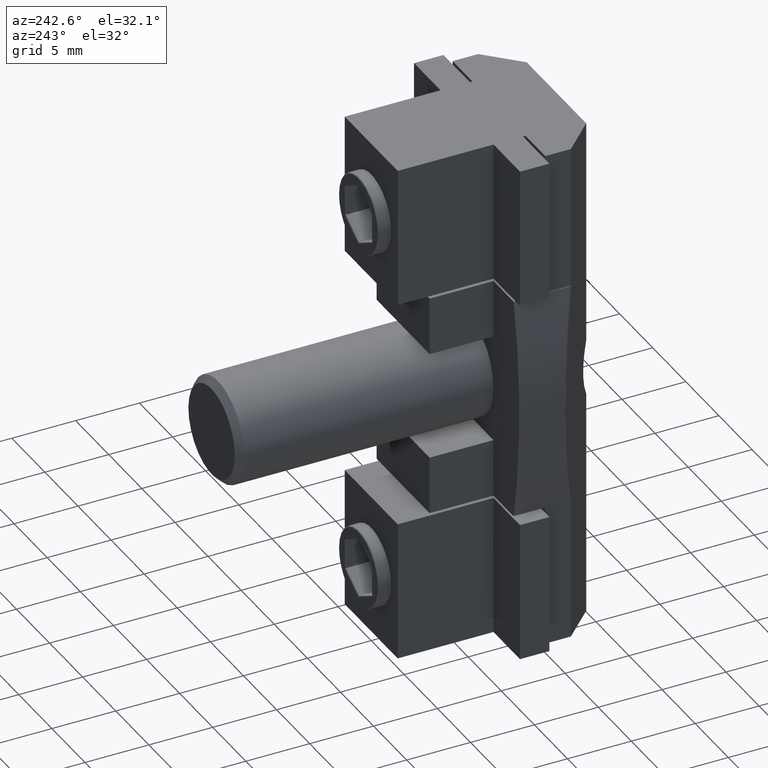
[diagram: clean part render]
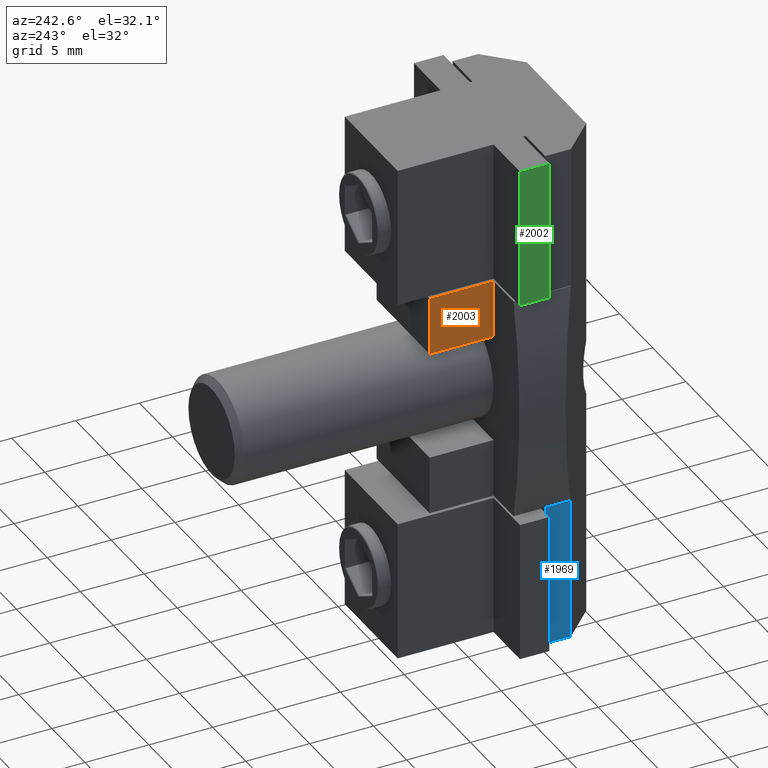
[diagram: same view with three faces highlighted in distinct colors, each labeled with its STEP entity id]
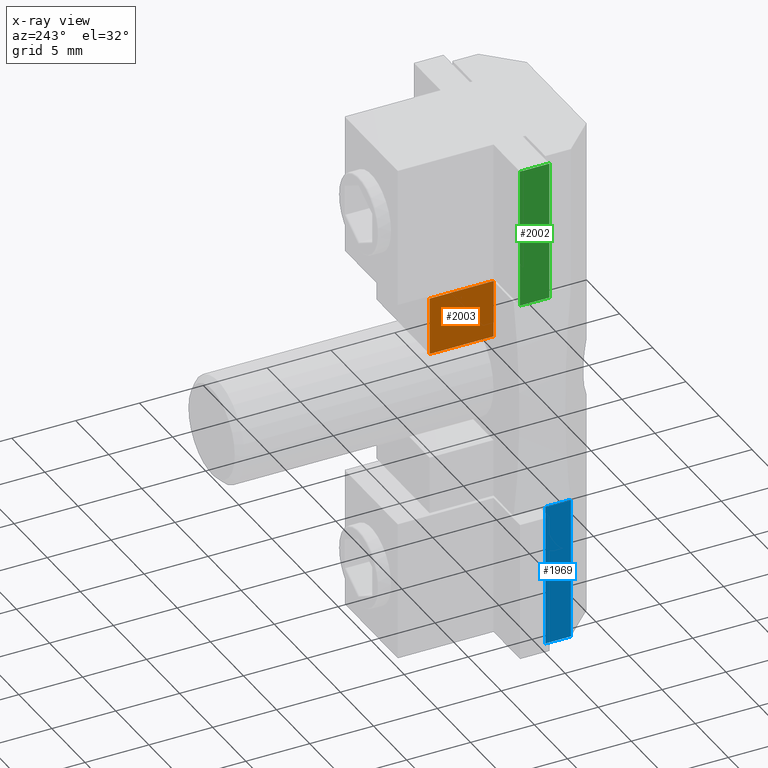
[diagram: x-ray of the same camera — body ghosted, the three highlighted faces saturated]
A machine part, auxiliary view with three faces highlighted in distinct colors.
The next image is the same camera in x-ray (body ghosted, the three faces saturated) — at least one of them is partly hidden behind the body in this view.
Their STEP definitions:

[orange] entity #2003 — the highlighted planar face has unit normal (-1, 0, 0).
#138=PLANE('',#2189);
#249=FACE_OUTER_BOUND('',#368,.T.);
#368=EDGE_LOOP('',(#1799,#1800,#1801,#1802));
#475=LINE('',#3042,#694);
#556=LINE('',#3278,#775);
#559=LINE('',#3284,#778);
#593=LINE('',#3351,#812);
#694=VECTOR('',#2429,10.);
#775=VECTOR('',#2620,10.);
#778=VECTOR('',#2625,10.);
#812=VECTOR('',#2683,10.);
#924=VERTEX_POINT('',#3039);
#925=VERTEX_POINT('',#3041);
#991=VERTEX_POINT('',#3276);
#993=VERTEX_POINT('',#3282);
#1141=EDGE_CURVE('',#925,#924,#475,.T.);
#1242=EDGE_CURVE('',#924,#991,#556,.T.);
#1245=EDGE_CURVE('',#991,#993,#559,.T.);
#1279=EDGE_CURVE('',#993,#925,#593,.T.);
#1799=ORIENTED_EDGE('',*,*,#1141,.T.);
#1800=ORIENTED_EDGE('',*,*,#1242,.T.);
#1801=ORIENTED_EDGE('',*,*,#1245,.T.);
#1802=ORIENTED_EDGE('',*,*,#1279,.T.);
#2003=ADVANCED_FACE('',(#249),#138,.T.);
#2189=AXIS2_PLACEMENT_3D('',#3387,#2722,#2723);
#2429=DIRECTION('',(0.,1.,-2.96059473233375E-16));
#2620=DIRECTION('',(0.,0.,-1.));
#2625=DIRECTION('',(0.,-1.,0.));
#2683=DIRECTION('',(0.,0.,1.));
#2722=DIRECTION('center_axis',(-1.,0.,0.));
#2723=DIRECTION('ref_axis',(0.,-1.,0.));
#3039=CARTESIAN_POINT('',(-4.,7.5,8.8));
#3041=CARTESIAN_POINT('',(-4.,2.5,8.8));
#3042=CARTESIAN_POINT('',(-4.,5.,8.8));
#3276=CARTESIAN_POINT('',(-4.,7.5,4.25));
#3278=CARTESIAN_POINT('',(-4.,7.5,4.4));
#3282=CARTESIAN_POINT('',(-4.,2.5,4.25));
#3284=CARTESIAN_POINT('',(-4.,8.75,4.25));
#3351=CARTESIAN_POINT('',(-4.,2.5,0.));
#3387=CARTESIAN_POINT('Origin',(-4.,10.,0.));

[blue] entity #1969 — the highlighted planar face has unit normal (-1, 0, 0).
#106=PLANE('',#2152);
#215=FACE_OUTER_BOUND('',#333,.T.);
#333=EDGE_LOOP('',(#1627,#1628,#1629,#1630));
#515=LINE('',#3188,#734);
#518=LINE('',#3197,#737);
#519=LINE('',#3199,#738);
#520=LINE('',#3200,#739);
#734=VECTOR('',#2545,10.);
#737=VECTOR('',#2556,10.);
#738=VECTOR('',#2557,10.);
#739=VECTOR('',#2558,10.);
#927=VERTEX_POINT('',#3048);
#959=VERTEX_POINT('',#3187);
#961=VERTEX_POINT('',#3196);
#962=VERTEX_POINT('',#3198);
#1197=EDGE_CURVE('',#959,#927,#515,.T.);
#1201=EDGE_CURVE('',#927,#961,#518,.T.);
#1202=EDGE_CURVE('',#962,#961,#519,.T.);
#1203=EDGE_CURVE('',#959,#962,#520,.T.);
#1627=ORIENTED_EDGE('',*,*,#1201,.T.);
#1628=ORIENTED_EDGE('',*,*,#1202,.F.);
#1629=ORIENTED_EDGE('',*,*,#1203,.F.);
#1630=ORIENTED_EDGE('',*,*,#1197,.T.);
#1969=ADVANCED_FACE('',(#215),#106,.T.);
#2152=AXIS2_PLACEMENT_3D('',#3195,#2554,#2555);
#2545=DIRECTION('',(0.,0.,1.));
#2554=DIRECTION('center_axis',(-1.,0.,0.));
#2555=DIRECTION('ref_axis',(0.,-1.,0.));
#2556=DIRECTION('',(0.,1.,0.));
#2557=DIRECTION('',(0.,0.,1.));
#2558=DIRECTION('',(0.,1.,0.));
#3048=CARTESIAN_POINT('',(-7.,-2.,-8.8));
#3187=CARTESIAN_POINT('',(-7.,-2.,-20.));
#3188=CARTESIAN_POINT('',(-7.,-2.,0.));
#3195=CARTESIAN_POINT('Origin',(-7.,0.,0.));
#3196=CARTESIAN_POINT('',(-7.,0.,-8.8));
#3197=CARTESIAN_POINT('',(-7.,0.0999999999999995,-8.8));
#3198=CARTESIAN_POINT('',(-7.,0.,-20.));
#3199=CARTESIAN_POINT('',(-7.,0.,0.));
#3200=CARTESIAN_POINT('',(-7.,0.,-20.));

[green] entity #2002 — the highlighted planar face has unit normal (-1, 0, 0).
#137=PLANE('',#2188);
#248=FACE_OUTER_BOUND('',#367,.T.);
#367=EDGE_LOOP('',(#1795,#1796,#1797,#1798));
#553=LINE('',#3272,#772);
#607=LINE('',#3378,#826);
#610=LINE('',#3385,#829);
#611=LINE('',#3386,#830);
#772=VECTOR('',#2615,10.);
#826=VECTOR('',#2713,10.);
#829=VECTOR('',#2720,10.);
#830=VECTOR('',#2721,10.);
#981=VERTEX_POINT('',#3253);
#989=VERTEX_POINT('',#3270);
#1019=VERTEX_POINT('',#3376);
#1021=VERTEX_POINT('',#3384);
#1239=EDGE_CURVE('',#981,#989,#553,.T.);
#1293=EDGE_CURVE('',#1019,#989,#607,.T.);
#1296=EDGE_CURVE('',#1021,#1019,#610,.T.);
#1297=EDGE_CURVE('',#981,#1021,#611,.T.);
#1795=ORIENTED_EDGE('',*,*,#1239,.T.);
#1796=ORIENTED_EDGE('',*,*,#1293,.F.);
#1797=ORIENTED_EDGE('',*,*,#1296,.F.);
#1798=ORIENTED_EDGE('',*,*,#1297,.F.);
#2002=ADVANCED_FACE('',(#248),#137,.T.);
#2188=AXIS2_PLACEMENT_3D('',#3383,#2718,#2719);
#2615=DIRECTION('',(0.,-1.,0.));
#2713=DIRECTION('',(0.,0.,-1.));
#2718=DIRECTION('center_axis',(-1.,0.,0.));
#2719=DIRECTION('ref_axis',(0.,-1.,0.));
#2720=DIRECTION('',(0.,-1.,0.));
#2721=DIRECTION('',(0.,0.,1.));
#3253=CARTESIAN_POINT('',(-8.,2.5,9.));
#3270=CARTESIAN_POINT('',(-8.,0.199999999999999,9.));
#3272=CARTESIAN_POINT('',(-8.,6.25,9.));
#3376=CARTESIAN_POINT('',(-8.,0.199999999999999,20.));
#3378=CARTESIAN_POINT('',(-8.,0.199999999999999,0.));
#3383=CARTESIAN_POINT('Origin',(-8.,2.5,0.));
#3384=CARTESIAN_POINT('',(-8.,2.5,20.));
#3385=CARTESIAN_POINT('',(-8.,0.199999999999999,20.));
#3386=CARTESIAN_POINT('',(-8.,2.5,0.));